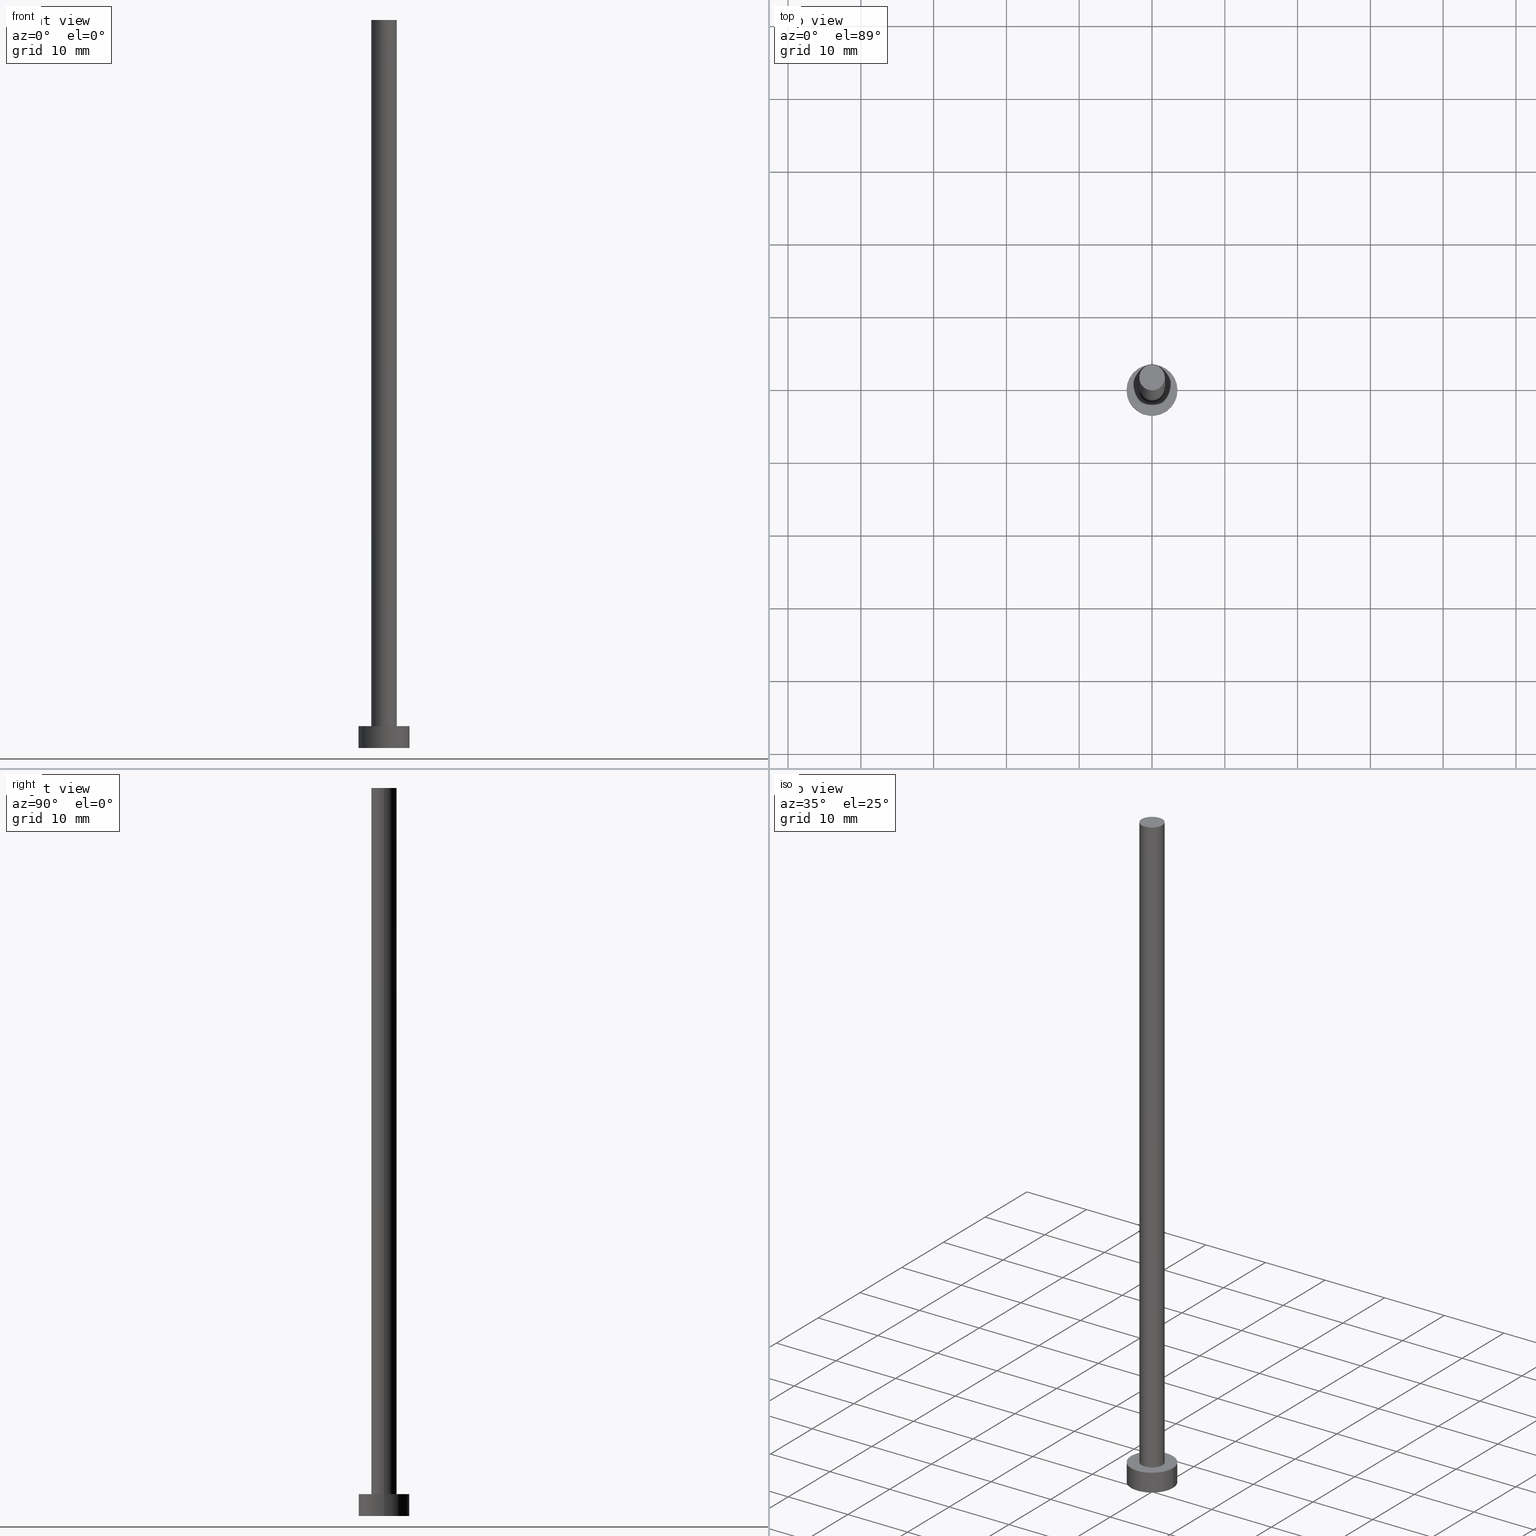
[diagram: canonical four-view strip — front | top / right | iso, engineering-drawing reading convention]
A machine part, canonical four-view strip (front | top / right | iso — engineering-drawing reading convention). The complete STEP part file that produces these views, byte-faithful:
ISO-10303-21;
HEADER;
FILE_DESCRIPTION (( 'STEP AP203' ),
    '1' );
FILE_NAME ('7cc2.STEP',
    '2023-02-12T12:43:07',
    ( '' ),
    ( '' ),
    'SwSTEP 2.0',
    'SolidWorks 2019',
    '' );
FILE_SCHEMA (( 'CONFIG_CONTROL_DESIGN' ));
ENDSEC;

DATA;
#1 = DIRECTION ( 'NONE',  ( -1.000000000000000000, 0.000000000000000000, 0.000000000000000000 ) ) ;
#2 = SECURITY_CLASSIFICATION ( '', '', #84 ) ;
#3 = CARTESIAN_POINT ( 'NONE',  ( 0.000000000000000000, 0.000000000000000000, 0.000000000000000000 ) ) ;
#4 = ADVANCED_BREP_SHAPE_REPRESENTATION ( '7cc2', ( #157, #42 ), #20 ) ;
#5 = EDGE_CURVE ( 'NONE', #63, #185, #136, .T. ) ;
#6 = PERSON_AND_ORGANIZATION_ROLE ( 'design_supplier' ) ;
#7 = ORIENTED_EDGE ( 'NONE', *, *, #5, .F. ) ;
#8 = PERSON_AND_ORGANIZATION_ROLE ( 'creator' ) ;
#9 = LOCAL_TIME ( 13, 43, 7.000000000000000000, #87 ) ;
#10 = DIRECTION ( 'NONE',  ( 0.000000000000000000, 0.000000000000000000, 1.000000000000000000 ) ) ;
#11 = ORIENTED_EDGE ( 'NONE', *, *, #238, .F. ) ;
#12 = EDGE_CURVE ( 'NONE', #50, #189, #15, .T. ) ;
#13 = ORIENTED_EDGE ( 'NONE', *, *, #182, .T. ) ;
#14 = ADVANCED_FACE ( 'NONE', ( #206 ), #167, .T. ) ;
#15 = LINE ( 'NONE', #85, #60 ) ;
#16 = FACE_OUTER_BOUND ( 'NONE', #45, .T. ) ;
#17 = CARTESIAN_POINT ( 'NONE',  ( 0.000000000000000000, 0.000000000000000000, 3.000000000000000000 ) ) ;
#18 = CARTESIAN_POINT ( 'NONE',  ( -3.500000000000000444, 0.000000000000000000, 3.000000000000000000 ) ) ;
#19 = DIRECTION ( 'NONE',  ( 0.000000000000000000, 0.000000000000000000, 1.000000000000000000 ) ) ;
#20 =( GEOMETRIC_REPRESENTATION_CONTEXT ( 3 ) GLOBAL_UNCERTAINTY_ASSIGNED_CONTEXT ( ( #94 ) ) GLOBAL_UNIT_ASSIGNED_CONTEXT ( ( #156, #165, #180 ) ) REPRESENTATION_CONTEXT ( 'NONE', 'WORKASPACE' ) );
#21 = APPROVAL_STATUS ( 'not_yet_approved' ) ;
#22 = CARTESIAN_POINT ( 'NONE',  ( 0.000000000000000000, 0.000000000000000000, 3.000000000000000000 ) ) ;
#23 = ORIENTED_EDGE ( 'NONE', *, *, #100, .T. ) ;
#24 = AXIS2_PLACEMENT_3D ( 'NONE', #195, #232, #96 ) ;
#25 = PLANE ( 'NONE',  #151 ) ;
#26 = ORIENTED_EDGE ( 'NONE', *, *, #12, .F. ) ;
#27 = ORIENTED_EDGE ( 'NONE', *, *, #139, .T. ) ;
#28 = AXIS2_PLACEMENT_3D ( 'NONE', #17, #150, #75 ) ;
#29 = DIRECTION ( 'NONE',  ( 1.000000000000000000, 0.000000000000000000, 0.000000000000000000 ) ) ;
#30 = DIRECTION ( 'NONE',  ( 1.000000000000000000, 0.000000000000000000, 0.000000000000000000 ) ) ;
#31 = APPROVAL ( #21, 'NEUR�EN�' ) ;
#32 = FACE_OUTER_BOUND ( 'NONE', #129, .T. ) ;
#33 = CARTESIAN_POINT ( 'NONE',  ( 1.750000000000000000, 2.143131898507867804E-16, 100.0000000000000000 ) ) ;
#34 = APPROVAL_PERSON_ORGANIZATION ( #241, #83, #140 ) ;
#35 = DIRECTION ( 'NONE',  ( 1.000000000000000000, 0.000000000000000000, -0.000000000000000000 ) ) ;
#36 = AXIS2_PLACEMENT_3D ( 'NONE', #154, #253, #121 ) ;
#37 = CC_DESIGN_APPROVAL ( #175, ( #2 ) ) ;
#38 = DIRECTION ( 'NONE',  ( 1.000000000000000000, 0.000000000000000000, 0.000000000000000000 ) ) ;
#39 = EDGE_CURVE ( 'NONE', #91, #63, #248, .T. ) ;
#40 = APPROVAL_STATUS ( 'not_yet_approved' ) ;
#41 = CIRCLE ( 'NONE', #28, 1.750000000000000000 ) ;
#42 = AXIS2_PLACEMENT_3D ( 'NONE', #3, #216, #38 ) ;
#43 = APPROVAL_ROLE ( '' ) ;
#44 = CARTESIAN_POINT ( 'NONE',  ( 3.500000000000000444, 4.286263797015737088E-16, 3.000000000000000000 ) ) ;
#45 = EDGE_LOOP ( 'NONE', ( #204, #27 ) ) ;
#46 = COORDINATED_UNIVERSAL_TIME_OFFSET ( 1, 0, .AHEAD. ) ;
#47 = CARTESIAN_POINT ( 'NONE',  ( 1.750000000000000000, 2.143131898507867804E-16, 100.0000000000000000 ) ) ;
#48 = PERSON_AND_ORGANIZATION ( #132, #82 ) ;
#49 = CIRCLE ( 'NONE', #227, 1.750000000000000000 ) ;
#50 = VERTEX_POINT ( 'NONE', #224 ) ;
#51 = ORIENTED_EDGE ( 'NONE', *, *, #53, .T. ) ;
#52 = FACE_OUTER_BOUND ( 'NONE', #143, .T. ) ;
#53 = EDGE_CURVE ( 'NONE', #223, #226, #202, .T. ) ;
#54 = CARTESIAN_POINT ( 'NONE',  ( 0.000000000000000000, 0.000000000000000000, 3.000000000000000000 ) ) ;
#55 = AXIS2_PLACEMENT_3D ( 'NONE', #198, #212, #30 ) ;
#56 = CARTESIAN_POINT ( 'NONE',  ( -1.750000000000000000, 0.000000000000000000, 3.000000000000000000 ) ) ;
#57 = CARTESIAN_POINT ( 'NONE',  ( 0.000000000000000000, 0.000000000000000000, 3.000000000000000000 ) ) ;
#58 = DIRECTION ( 'NONE',  ( 1.000000000000000000, 0.000000000000000000, -0.000000000000000000 ) ) ;
#59 = CIRCLE ( 'NONE', #55, 3.500000000000000444 ) ;
#60 = VECTOR ( 'NONE', #168, 1000.000000000000000 ) ;
#61 = ADVANCED_FACE ( 'NONE', ( #107 ), #25, .F. ) ;
#62 = COORDINATED_UNIVERSAL_TIME_OFFSET ( 1, 0, .AHEAD. ) ;
#63 = VERTEX_POINT ( 'NONE', #117 ) ;
#64 = AXIS2_PLACEMENT_3D ( 'NONE', #54, #193, #116 ) ;
#65 = DATE_TIME_ROLE ( 'classification_date' ) ;
#66 = ORIENTED_EDGE ( 'NONE', *, *, #179, .T. ) ;
#67 = ORIENTED_EDGE ( 'NONE', *, *, #197, .T. ) ;
#68 = PERSON_AND_ORGANIZATION_ROLE ( 'classification_officer' ) ;
#69 = ADVANCED_FACE ( 'NONE', ( #52 ), #234, .T. ) ;
#70 = ORIENTED_EDGE ( 'NONE', *, *, #139, .F. ) ;
#71 = LOCAL_TIME ( 13, 43, 7.000000000000000000, #123 ) ;
#72 = EDGE_LOOP ( 'NONE', ( #141, #250 ) ) ;
#73 = CARTESIAN_POINT ( 'NONE',  ( -3.500000000000000444, 0.000000000000000000, 0.000000000000000000 ) ) ;
#74 = DIRECTION ( 'NONE',  ( -0.000000000000000000, -0.000000000000000000, -1.000000000000000000 ) ) ;
#75 = DIRECTION ( 'NONE',  ( 1.000000000000000000, 0.000000000000000000, 0.000000000000000000 ) ) ;
#76 = VECTOR ( 'NONE', #120, 1000.000000000000000 ) ;
#77 = ADVANCED_FACE ( 'NONE', ( #16 ), #199, .T. ) ;
#78 = DIRECTION ( 'NONE',  ( -1.000000000000000000, 0.000000000000000000, 0.000000000000000000 ) ) ;
#79 = DIRECTION ( 'NONE',  ( 0.000000000000000000, 0.000000000000000000, 1.000000000000000000 ) ) ;
#80 = CC_DESIGN_PERSON_AND_ORGANIZATION_ASSIGNMENT ( #207, #6, ( #240 ) ) ;
#81 = APPLICATION_PROTOCOL_DEFINITION ( 'international standard', 'config_control_design', 1994, #155 ) ;
#82 = ORGANIZATION ( 'NEUR�EN�', 'NEUR�EN�', '' ) ;
#83 = APPROVAL ( #40, 'NEUR�EN�' ) ;
#84 = SECURITY_CLASSIFICATION_LEVEL ( 'unclassified' ) ;
#85 = CARTESIAN_POINT ( 'NONE',  ( -1.750000000000000000, 0.000000000000000000, 100.0000000000000000 ) ) ;
#86 = LOCAL_TIME ( 13, 43, 7.000000000000000000, #112 ) ;
#87 = COORDINATED_UNIVERSAL_TIME_OFFSET ( 1, 0, .AHEAD. ) ;
#88 = ORIENTED_EDGE ( 'NONE', *, *, #39, .T. ) ;
#89 = APPROVAL_DATE_TIME ( #188, #31 ) ;
#90 = EDGE_LOOP ( 'NONE', ( #229, #166, #111, #67 ) ) ;
#91 = VERTEX_POINT ( 'NONE', #194 ) ;
#92 = AXIS2_PLACEMENT_3D ( 'NONE', #101, #174, #35 ) ;
#93 = AXIS2_PLACEMENT_3D ( 'NONE', #173, #74, #1 ) ;
#94 = UNCERTAINTY_MEASURE_WITH_UNIT (LENGTH_MEASURE( 1.000000000000000082E-05 ), #156, 'distance_accuracy_value', 'NONE');
#95 = DIRECTION ( 'NONE',  ( 1.000000000000000000, 0.000000000000000000, 0.000000000000000000 ) ) ;
#96 = DIRECTION ( 'NONE',  ( 1.000000000000000000, 0.000000000000000000, 0.000000000000000000 ) ) ;
#97 = APPROVAL_DATE_TIME ( #203, #175 ) ;
#98 = AXIS2_PLACEMENT_3D ( 'NONE', #130, #137, #252 ) ;
#99 = CYLINDRICAL_SURFACE ( 'NONE', #220, 1.750000000000000000 ) ;
#100 = EDGE_CURVE ( 'NONE', #226, #189, #41, .T. ) ;
#101 = CARTESIAN_POINT ( 'NONE',  ( 0.000000000000000000, 0.000000000000000000, 100.0000000000000000 ) ) ;
#102 = CIRCLE ( 'NONE', #24, 1.750000000000000000 ) ;
#103 = CC_DESIGN_SECURITY_CLASSIFICATION ( #2, ( #240 ) ) ;
#104 = PERSON_AND_ORGANIZATION_ROLE ( 'design_owner' ) ;
#105 = DATE_AND_TIME ( #200, #122 ) ;
#106 = AXIS2_PLACEMENT_3D ( 'NONE', #57, #79, #95 ) ;
#107 = FACE_OUTER_BOUND ( 'NONE', #148, .T. ) ;
#108 = PERSON_AND_ORGANIZATION ( #132, #82 ) ;
#109 = CARTESIAN_POINT ( 'NONE',  ( 0.000000000000000000, 0.000000000000000000, 0.000000000000000000 ) ) ;
#110 = PRODUCT_RELATED_PRODUCT_CATEGORY ( 'detail', '', ( #187 ) ) ;
#111 = ORIENTED_EDGE ( 'NONE', *, *, #12, .T. ) ;
#112 = COORDINATED_UNIVERSAL_TIME_OFFSET ( 1, 0, .AHEAD. ) ;
#113 = VERTEX_POINT ( 'NONE', #214 ) ;
#114 = ADVANCED_FACE ( 'NONE', ( #118 ), #133, .T. ) ;
#115 = ORIENTED_EDGE ( 'NONE', *, *, #5, .T. ) ;
#116 = DIRECTION ( 'NONE',  ( 1.000000000000000000, 0.000000000000000000, 0.000000000000000000 ) ) ;
#117 = CARTESIAN_POINT ( 'NONE',  ( 3.500000000000000444, 4.286263797015737088E-16, 0.000000000000000000 ) ) ;
#118 = FACE_OUTER_BOUND ( 'NONE', #90, .T. ) ;
#119 = LOCAL_TIME ( 13, 43, 7.000000000000000000, #46 ) ;
#120 = DIRECTION ( 'NONE',  ( -0.000000000000000000, -0.000000000000000000, -1.000000000000000000 ) ) ;
#121 = DIRECTION ( 'NONE',  ( -1.000000000000000000, 0.000000000000000000, 0.000000000000000000 ) ) ;
#122 = LOCAL_TIME ( 13, 43, 7.000000000000000000, #62 ) ;
#123 = COORDINATED_UNIVERSAL_TIME_OFFSET ( 1, 0, .AHEAD. ) ;
#124 = DIRECTION ( 'NONE',  ( -0.000000000000000000, -0.000000000000000000, -1.000000000000000000 ) ) ;
#125 = DATE_AND_TIME ( #205, #119 ) ;
#126 = ORIENTED_EDGE ( 'NONE', *, *, #238, .T. ) ;
#127 = DIRECTION ( 'NONE',  ( -0.000000000000000000, -0.000000000000000000, -1.000000000000000000 ) ) ;
#128 = ORIENTED_EDGE ( 'NONE', *, *, #190, .T. ) ;
#129 = EDGE_LOOP ( 'NONE', ( #70, #51, #23, #26 ) ) ;
#130 = CARTESIAN_POINT ( 'NONE',  ( 0.000000000000000000, 0.000000000000000000, 3.000000000000000000 ) ) ;
#131 = LINE ( 'NONE', #18, #76 ) ;
#132 = PERSON ( 'NEUR�EN�', 'NEUR�EN�', 'NEUR�EN�', ('NEUR�EN�'), ('NEUR�EN�'), ('NEUR�EN�') ) ;
#133 = CYLINDRICAL_SURFACE ( 'NONE', #36, 1.750000000000000000 ) ;
#134 = PLANE ( 'NONE',  #98 ) ;
#135 = AXIS2_PLACEMENT_3D ( 'NONE', #149, #210, #29 ) ;
#136 = CIRCLE ( 'NONE', #158, 3.500000000000000444 ) ;
#137 = DIRECTION ( 'NONE',  ( 0.000000000000000000, 0.000000000000000000, 1.000000000000000000 ) ) ;
#138 = CC_DESIGN_PERSON_AND_ORGANIZATION_ASSIGNMENT ( #169, #249, ( #240 ) ) ;
#139 = EDGE_CURVE ( 'NONE', #223, #50, #102, .T. ) ;
#140 = APPROVAL_ROLE ( '' ) ;
#141 = ORIENTED_EDGE ( 'NONE', *, *, #197, .F. ) ;
#142 = APPROVAL_ROLE ( '' ) ;
#143 = EDGE_LOOP ( 'NONE', ( #208, #88, #115, #186 ) ) ;
#144 = CALENDAR_DATE ( 2023, 12, 2 ) ;
#145 = EDGE_LOOP ( 'NONE', ( #244, #209, #13, #126 ) ) ;
#146 = EDGE_LOOP ( 'NONE', ( #128, #66 ) ) ;
#147 = ADVANCED_FACE ( 'NONE', ( #235, #233 ), #134, .T. ) ;
#148 = EDGE_LOOP ( 'NONE', ( #11, #7 ) ) ;
#149 = CARTESIAN_POINT ( 'NONE',  ( 0.000000000000000000, 0.000000000000000000, 3.000000000000000000 ) ) ;
#150 = DIRECTION ( 'NONE',  ( 0.000000000000000000, 0.000000000000000000, 1.000000000000000000 ) ) ;
#151 = AXIS2_PLACEMENT_3D ( 'NONE', #247, #230, #58 ) ;
#152 = CC_DESIGN_APPROVAL ( #31, ( #240 ) ) ;
#153 = CC_DESIGN_PERSON_AND_ORGANIZATION_ASSIGNMENT ( #217, #104, ( #187 ) ) ;
#154 = CARTESIAN_POINT ( 'NONE',  ( 0.000000000000000000, 0.000000000000000000, 100.0000000000000000 ) ) ;
#155 = APPLICATION_CONTEXT ( 'configuration controlled 3d designs of mechanical parts and assemblies' ) ;
#156 =( LENGTH_UNIT ( ) NAMED_UNIT ( * ) SI_UNIT ( .MILLI., .METRE. ) );
#157 = MANIFOLD_SOLID_BREP ( 'P�idat vysunut�m3', #184 ) ;
#158 = AXIS2_PLACEMENT_3D ( 'NONE', #109, #10, #192 ) ;
#159 = CIRCLE ( 'NONE', #106, 1.750000000000000000 ) ;
#160 = PRODUCT_DEFINITION_SHAPE ( 'NONE', 'NONE',  #215 ) ;
#161 = MECHANICAL_CONTEXT ( 'NONE', #155, 'mechanical' ) ;
#162 = APPLICATION_PROTOCOL_DEFINITION ( 'international standard', 'config_control_design', 1994, #164 ) ;
#163 = DESIGN_CONTEXT ( 'detailed design', #164, 'design' ) ;
#164 = APPLICATION_CONTEXT ( 'configuration controlled 3d designs of mechanical parts and assemblies' ) ;
#165 =( NAMED_UNIT ( * ) PLANE_ANGLE_UNIT ( ) SI_UNIT ( $, .RADIAN. ) );
#166 = ORIENTED_EDGE ( 'NONE', *, *, #242, .F. ) ;
#167 = CYLINDRICAL_SURFACE ( 'NONE', #196, 3.500000000000000444 ) ;
#168 = DIRECTION ( 'NONE',  ( -0.000000000000000000, -0.000000000000000000, -1.000000000000000000 ) ) ;
#169 = PERSON_AND_ORGANIZATION ( #132, #82 ) ;
#170 = DATE_TIME_ROLE ( 'creation_date' ) ;
#171 = CC_DESIGN_DATE_AND_TIME_ASSIGNMENT ( #125, #170, ( #215 ) ) ;
#172 = DIRECTION ( 'NONE',  ( -1.000000000000000000, 0.000000000000000000, 0.000000000000000000 ) ) ;
#173 = CARTESIAN_POINT ( 'NONE',  ( 0.000000000000000000, 0.000000000000000000, 3.000000000000000000 ) ) ;
#174 = DIRECTION ( 'NONE',  ( 0.000000000000000000, 0.000000000000000000, 1.000000000000000000 ) ) ;
#175 = APPROVAL ( #191, 'NEUR�EN�' ) ;
#176 = CARTESIAN_POINT ( 'NONE',  ( 0.000000000000000000, 0.000000000000000000, 100.0000000000000000 ) ) ;
#177 = CARTESIAN_POINT ( 'NONE',  ( 0.000000000000000000, 0.000000000000000000, 100.0000000000000000 ) ) ;
#178 = DIRECTION ( 'NONE',  ( -0.000000000000000000, -0.000000000000000000, -1.000000000000000000 ) ) ;
#179 = EDGE_CURVE ( 'NONE', #91, #113, #239, .T. ) ;
#180 =( NAMED_UNIT ( * ) SI_UNIT ( $, .STERADIAN. ) SOLID_ANGLE_UNIT ( ) );
#181 = CC_DESIGN_PERSON_AND_ORGANIZATION_ASSIGNMENT ( #245, #68, ( #2 ) ) ;
#182 = EDGE_CURVE ( 'NONE', #113, #185, #131, .T. ) ;
#183 = APPROVAL_DATE_TIME ( #105, #83 ) ;
#184 = CLOSED_SHELL ( 'NONE', ( #243, #69, #14, #147, #61, #114, #77 ) ) ;
#185 = VERTEX_POINT ( 'NONE', #73 ) ;
#186 = ORIENTED_EDGE ( 'NONE', *, *, #182, .F. ) ;
#187 = PRODUCT ( '7cc2', '7cc2', '', ( #161 ) ) ;
#188 = DATE_AND_TIME ( #144, #71 ) ;
#189 = VERTEX_POINT ( 'NONE', #56 ) ;
#190 = EDGE_CURVE ( 'NONE', #113, #91, #251, .T. ) ;
#191 = APPROVAL_STATUS ( 'not_yet_approved' ) ;
#192 = DIRECTION ( 'NONE',  ( 1.000000000000000000, 0.000000000000000000, 0.000000000000000000 ) ) ;
#193 = DIRECTION ( 'NONE',  ( 0.000000000000000000, 0.000000000000000000, 1.000000000000000000 ) ) ;
#194 = CARTESIAN_POINT ( 'NONE',  ( 3.500000000000000444, 4.286263797015737088E-16, 3.000000000000000000 ) ) ;
#195 = CARTESIAN_POINT ( 'NONE',  ( 0.000000000000000000, 0.000000000000000000, 100.0000000000000000 ) ) ;
#196 = AXIS2_PLACEMENT_3D ( 'NONE', #22, #221, #172 ) ;
#197 = EDGE_CURVE ( 'NONE', #189, #226, #159, .T. ) ;
#198 = CARTESIAN_POINT ( 'NONE',  ( 0.000000000000000000, 0.000000000000000000, 0.000000000000000000 ) ) ;
#199 = PLANE ( 'NONE',  #92 ) ;
#200 = CALENDAR_DATE ( 2023, 12, 2 ) ;
#201 = APPROVAL_PERSON_ORGANIZATION ( #108, #31, #43 ) ;
#202 = LINE ( 'NONE', #47, #255 ) ;
#203 = DATE_AND_TIME ( #222, #9 ) ;
#204 = ORIENTED_EDGE ( 'NONE', *, *, #242, .T. ) ;
#205 = CALENDAR_DATE ( 2023, 12, 2 ) ;
#206 = FACE_OUTER_BOUND ( 'NONE', #145, .T. ) ;
#207 = PERSON_AND_ORGANIZATION ( #132, #82 ) ;
#208 = ORIENTED_EDGE ( 'NONE', *, *, #179, .F. ) ;
#209 = ORIENTED_EDGE ( 'NONE', *, *, #190, .F. ) ;
#210 = DIRECTION ( 'NONE',  ( 0.000000000000000000, 0.000000000000000000, 1.000000000000000000 ) ) ;
#211 = CC_DESIGN_DATE_AND_TIME_ASSIGNMENT ( #225, #65, ( #2 ) ) ;
#212 = DIRECTION ( 'NONE',  ( 0.000000000000000000, 0.000000000000000000, 1.000000000000000000 ) ) ;
#213 = CARTESIAN_POINT ( 'NONE',  ( 1.750000000000000000, 2.143131898507867804E-16, 3.000000000000000000 ) ) ;
#214 = CARTESIAN_POINT ( 'NONE',  ( -3.500000000000000444, 0.000000000000000000, 3.000000000000000000 ) ) ;
#215 = PRODUCT_DEFINITION ( 'NEZN�M�', '', #240, #163 ) ;
#216 = DIRECTION ( 'NONE',  ( 0.000000000000000000, 0.000000000000000000, 1.000000000000000000 ) ) ;
#217 = PERSON_AND_ORGANIZATION ( #132, #82 ) ;
#218 = CC_DESIGN_PERSON_AND_ORGANIZATION_ASSIGNMENT ( #219, #8, ( #215 ) ) ;
#219 = PERSON_AND_ORGANIZATION ( #132, #82 ) ;
#220 = AXIS2_PLACEMENT_3D ( 'NONE', #177, #178, #78 ) ;
#221 = DIRECTION ( 'NONE',  ( -0.000000000000000000, -0.000000000000000000, -1.000000000000000000 ) ) ;
#222 = CALENDAR_DATE ( 2023, 12, 2 ) ;
#223 = VERTEX_POINT ( 'NONE', #33 ) ;
#224 = CARTESIAN_POINT ( 'NONE',  ( -1.750000000000000000, 0.000000000000000000, 100.0000000000000000 ) ) ;
#225 = DATE_AND_TIME ( #228, #86 ) ;
#226 = VERTEX_POINT ( 'NONE', #213 ) ;
#227 = AXIS2_PLACEMENT_3D ( 'NONE', #176, #19, #254 ) ;
#228 = CALENDAR_DATE ( 2023, 12, 2 ) ;
#229 = ORIENTED_EDGE ( 'NONE', *, *, #53, .F. ) ;
#230 = DIRECTION ( 'NONE',  ( 0.000000000000000000, 0.000000000000000000, 1.000000000000000000 ) ) ;
#231 = SHAPE_DEFINITION_REPRESENTATION ( #160, #4 ) ;
#232 = DIRECTION ( 'NONE',  ( 0.000000000000000000, 0.000000000000000000, 1.000000000000000000 ) ) ;
#233 = FACE_OUTER_BOUND ( 'NONE', #146, .T. ) ;
#234 = CYLINDRICAL_SURFACE ( 'NONE', #93, 3.500000000000000444 ) ;
#235 = FACE_BOUND ( 'NONE', #72, .T. ) ;
#236 = APPROVAL_PERSON_ORGANIZATION ( #48, #175, #142 ) ;
#237 = VECTOR ( 'NONE', #124, 1000.000000000000000 ) ;
#238 = EDGE_CURVE ( 'NONE', #185, #63, #59, .T. ) ;
#239 = CIRCLE ( 'NONE', #64, 3.500000000000000444 ) ;
#240 = PRODUCT_DEFINITION_FORMATION_WITH_SPECIFIED_SOURCE ( 'LIBOVOLN�', '', #187, .NOT_KNOWN. ) ;
#241 = PERSON_AND_ORGANIZATION ( #132, #82 ) ;
#242 = EDGE_CURVE ( 'NONE', #50, #223, #49, .T. ) ;
#243 = ADVANCED_FACE ( 'NONE', ( #32 ), #99, .T. ) ;
#244 = ORIENTED_EDGE ( 'NONE', *, *, #39, .F. ) ;
#245 = PERSON_AND_ORGANIZATION ( #132, #82 ) ;
#246 = CC_DESIGN_APPROVAL ( #83, ( #215 ) ) ;
#247 = CARTESIAN_POINT ( 'NONE',  ( 0.000000000000000000, 0.000000000000000000, 0.000000000000000000 ) ) ;
#248 = LINE ( 'NONE', #44, #237 ) ;
#249 = PERSON_AND_ORGANIZATION_ROLE ( 'creator' ) ;
#250 = ORIENTED_EDGE ( 'NONE', *, *, #100, .F. ) ;
#251 = CIRCLE ( 'NONE', #135, 3.500000000000000444 ) ;
#252 = DIRECTION ( 'NONE',  ( 1.000000000000000000, 0.000000000000000000, -0.000000000000000000 ) ) ;
#253 = DIRECTION ( 'NONE',  ( -0.000000000000000000, -0.000000000000000000, -1.000000000000000000 ) ) ;
#254 = DIRECTION ( 'NONE',  ( 1.000000000000000000, 0.000000000000000000, 0.000000000000000000 ) ) ;
#255 = VECTOR ( 'NONE', #127, 1000.000000000000000 ) ;
ENDSEC;
END-ISO-10303-21;
